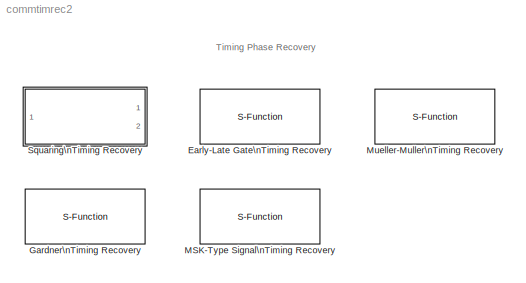
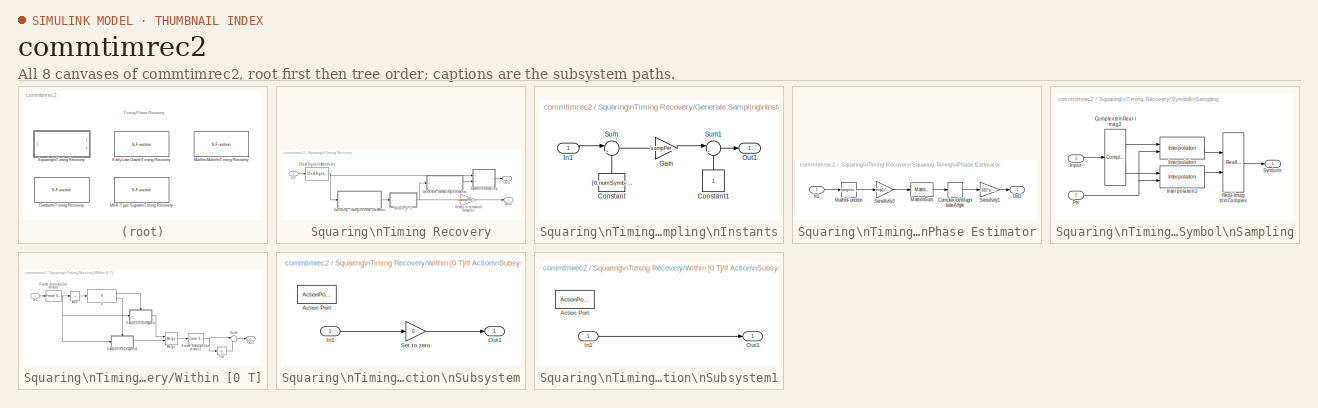
[diagram: thumbnail index - all 8 canvases of the model, root first then tree order]
MODEL commtimrec2
KIND library
BLOCK [S-Function] Early-Late Gate\nTiming Recovery
  FunctionName = scomtimreclin
  MaskCallbackString = ||
  MaskDescription = Recover the symbol timing phase using the early-late gate method. This non-data-aided feedback method is suitable for linear baseband modulations.\n\nThe method estimates the symbol timing phase offset for each incoming symbol and outputs the signal value corresponding to the estimated symbol sampling instant.\n\nThe second output returns the estimated timing phase offset for each symbol, which is...<+185ch>
  MaskDisplay = disp('Early-Late Gate\\nTiming Recovery');\nport_label('input', s.i1, s.i1s);\nport_label('input', s.i2, s.i2s);\nport_label('output', s.o1, s.o1s);\nport_label('output', s.o2, s.o2s);\n
  MaskEnableString = on,on,on
  MaskHelp = helpview(commbhelp);
  MaskIconFrame = on
  MaskIconOpaque = on
  MaskIconRotate = none
  MaskIconUnits = autoscale
  MaskInitialization = s = commblktimrec(resetMode);
  MaskPromptString = Samples per symbol:|Error update gain:|Reset:
  MaskSelfModifiable = on
  MaskStyleString = edit,edit,popup(None|Every frame|On nonzero input via port)
  MaskTabNameString = ,,
  MaskToolTipString = on,on,on
  MaskTunableValueString = on,on,on
  MaskType = Early-Late Gate Timing Recovery
  MaskValueString = 4|0.05|None
  MaskVarAliasString = ,,
  MaskVariables = sampPerSymbol=@1;propGain=@2;resetMode=@3;
  MaskVisibilityString = on,on,on
  Parameters = sampPerSymbol, propGain, resetMode, 2
  Ports = [1, 2]
BLOCK [S-Function] Gardner\nTiming Recovery
  FunctionName = scomtimreclin
  MaskCallbackString = ||
  MaskDescription = Recover the symbol timing phase using Gardner's method. This non-data-aided feedback method is suitable for linear baseband modulations.\n\nThe method estimates the symbol timing phase offset for each incoming symbol and outputs the signal value corresponding to the estimated symbol sampling instant.\n\nThe second output returns the estimated timing phase offset for each symbol, which is a nonnega...<+175ch>
  MaskDisplay = disp('Gardner\\nTiming Recovery');\nport_label('input', s.i1, s.i1s);\nport_label('input', s.i2, s.i2s);\nport_label('output', s.o1, s.o1s);\nport_label('output', s.o2, s.o2s);\n
  MaskEnableString = on,on,on
  MaskHelp = helpview(commbhelp);
  MaskIconFrame = on
  MaskIconOpaque = on
  MaskIconRotate = none
  MaskIconUnits = autoscale
  MaskInitialization = s = commblktimrec(resetMode);
  MaskPromptString = Samples per symbol:|Error update gain:|Reset:
  MaskSelfModifiable = on
  MaskStyleString = edit,edit,popup(None|Every frame|On nonzero input via port)
  MaskTabNameString = ,,
  MaskToolTipString = on,on,on
  MaskTunableValueString = on,on,on
  MaskType = Gardner Timing Recovery
  MaskValueString = 4|0.05|None
  MaskVarAliasString = ,,
  MaskVariables = sampPerSymbol=@1;propGain=@2;resetMode=@3;
  MaskVisibilityString = on,on,on
  Parameters = sampPerSymbol, propGain, resetMode, 1
  Ports = [1, 2]
BLOCK [S-Function] MSK-Type Signal\nTiming Recovery
  FunctionName = scomtimrecmsk
  MaskCallbackString = |||
  MaskDescription = Recover the symbol timing phase using a fourth-order non-linearity method. This non-data-aided feedback method is suitable for MSK-type baseband modulations.\n\nThe method estimates the symbol timing phase offset for each incoming symbol and outputs the signal value corresponding to the estimated symbol sampling instant.\n\nThe second output returns the estimated timing phase offset for each symbo...<+196ch>
  MaskDisplay = disp([s.type ' Signal\\nTiming Recovery']);\nport_label('input', s.i1, s.i1s);\nport_label('input', s.i2, s.i2s);\nport_label('output', s.o1, s.o1s);\nport_label('output', s.o2, s.o2s);\n
  MaskEnableString = on,on,on,on
  MaskHelp = helpview(commbhelp);
  MaskIconFrame = on
  MaskIconOpaque = on
  MaskIconRotate = none
  MaskIconUnits = autoscale
  MaskInitialization = s = commblktimrec(resetMode, modType);
  MaskPromptString = Modulation type:|Samples per symbol:|Error update gain:|Reset:
  MaskSelfModifiable = on
  MaskStyleString = popup(MSK|GMSK),edit,edit,popup(None|Every frame|On nonzero input via port)
  MaskTabNameString = ,,,
  MaskToolTipString = on,on,on,on
  MaskTunableValueString = on,on,on,on
  MaskType = MSK-Type Signal Timing Recovery
  MaskValueString = MSK|4|0.05|None
  MaskVarAliasString = ,,,
  MaskVariables = modType=@1;sampPerSymbol=@2;propGain=@3;resetMode=@4;
  MaskVisibilityString = on,on,on,on
  Parameters = sampPerSymbol, propGain, resetMode, modType
  Ports = [1, 2]
BLOCK [S-Function] Mueller-Muller\nTiming Recovery
  FunctionName = scomtimreclin
  MaskCallbackString = ||
  MaskDescription = Recover the symbol timing phase using the Mueller-Muller method. This decision-directed data-aided feedback method is suitable for linear binary baseband modulations.\n\nThe method estimates the symbol timing phase offset for each incoming symbol and outputs the signal value corresponding to the estimated symbol sampling instant.\n\nThe second output returns the estimated timing phase offset for e...<+205ch>
  MaskDisplay = disp('Mueller-Muller\\nTiming Recovery');\nport_label('input', s.i1, s.i1s);\nport_label('input', s.i2, s.i2s);\nport_label('output', s.o1, s.o1s);\nport_label('output', s.o2, s.o2s);\n
  MaskEnableString = on,on,on
  MaskHelp = helpview(commbhelp);
  MaskIconFrame = on
  MaskIconOpaque = on
  MaskIconRotate = none
  MaskIconUnits = autoscale
  MaskInitialization = s = commblktimrec(resetMode);
  MaskPromptString = Samples per symbol:|Error update gain:|Reset:
  MaskSelfModifiable = on
  MaskStyleString = edit,edit,popup(None|Every frame|On nonzero input via port)
  MaskTabNameString = ,,
  MaskToolTipString = on,on,on
  MaskTunableValueString = on,on,on
  MaskType = Mueller-Muller Timing Recovery
  MaskValueString = 4|0.05|None
  MaskVarAliasString = ,,
  MaskVariables = sampPerSymbol=@1;propGain=@2;resetMode=@3;
  MaskVisibilityString = on,on,on
  Parameters = sampPerSymbol, propGain, resetMode, 3
  Ports = [1, 2]
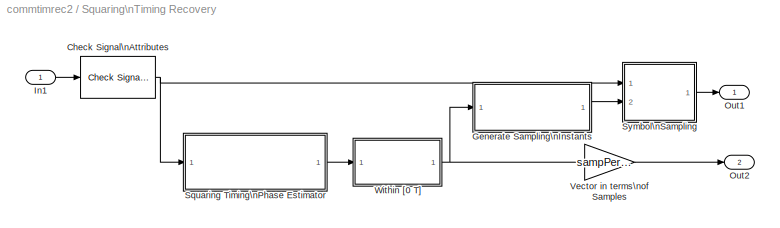
BLOCK [SubSystem] Squaring\nTiming Recovery
  ErrorFcn = commblktimrecechk
  MaskCallbackString = |
  MaskDescription = Recover the symbol timing phase using a Squaring method. This frame-based feed-forward method is suitable for linear baseband modulations.\n\nThe method estimates the symbol timing phase offset for a sequence of symbols and outputs the symbol spaced signal values by applying the estimate uniformly over the sequence of data.\n\nThe symbol timing phase offset is assumed to remain constant for an obs...<+242ch>
  MaskDisplay = disp('Squaring\\nTiming Recovery');\nport_label('output',1,'Sym');\nport_label('output',2,'Ph');\n
  MaskEnableString = on,on
  MaskHelp = helpview(commbhelp);
  MaskIconFrame = on
  MaskIconOpaque = on
  MaskIconRotate = none
  MaskIconUnits = autoscale
  MaskInitialization = commblksqtimrec2(numSymb, sampPerSymb);
  MaskPromptString = Symbols per frame:|Samples per symbol:
  MaskSelfModifiable = on
  MaskStyleString = edit,edit
  MaskTabNameString = ,
  MaskToolTipString = on,on
  MaskTunableValueString = on,on
  MaskType = Squaring Timing Recovery
  MaskValueString = 100|4
  MaskVarAliasString = ,
  MaskVariables = numSymb=@1;sampPerSymb=@2;
  MaskVisibilityString = on,on
  Ports = [1, 2]
  TreatAsAtomicUnit = off
BLOCK [Reference] Squaring\nTiming Recovery/Check Signal\nAttributes  REF=dspsigattribs/Check Signal\nAttributes
  Complexity = Complex
  DatatypeCheckMethod = Ignore
  DatatypeGeneral = Boolean
  Dimensions = 1-D
  DimsCheckMethod = Ignore
  DtypeFixedSpecific = Any fixed-point
  DtypeFloatSpecific = Any floating-point
  DtypeIntSpecific = Any integer
  Frame = Frame-based
  Ports = [1, 1]
  SampleMode = Ignore
  SigAttribCheckMethod = Does not match attributes exactly
  SourceBlock = dspsigattribs/Check Signal\nAttributes
  SourceType = Check Signal Attributes
BLOCK [SubSystem] Squaring\nTiming Recovery/Generate Sampling\nInstants
  MaskCallbackString = |
  MaskDescription = Map the delay estimate to the symbol sampling instants for the number of symbols in the observation interval.
  MaskDisplay = disp('Generate\\nInstants');\nport_label('input',1,'Phase');\nport_label('output',1,'Pts');
  MaskEnableString = on,on
  MaskIconFrame = on
  MaskIconOpaque = on
  MaskIconRotate = none
  MaskIconUnits = autoscale
  MaskPromptString = Number of symbols:|Samples per symbol:
  MaskSelfModifiable = on
  MaskStyleString = edit,edit
  MaskTabNameString = ,
  MaskToolTipString = on,on
  MaskTunableValueString = on,on
  MaskType = Generate points
  MaskValueString = numSymb|sampPerSymb
  MaskVarAliasString = ,
  MaskVariables = numSymb=@1;sampPerSymb=@2;
  MaskVisibilityString = on,on
  Ports = [1, 1]
  TreatAsAtomicUnit = off
BLOCK [Constant] Squaring\nTiming Recovery/Generate Sampling\nInstants/Constant
  Value = [0:numSymb-1]'
BLOCK [Constant] Squaring\nTiming Recovery/Generate Sampling\nInstants/Constant1
BLOCK [Gain] Squaring\nTiming Recovery/Generate Sampling\nInstants/Gain
  Gain = sampPerSymb
BLOCK [Inport] Squaring\nTiming Recovery/Generate Sampling\nInstants/In1
  IconDisplay = Port number
BLOCK [Outport] Squaring\nTiming Recovery/Generate Sampling\nInstants/Out1
  IconDisplay = Port number
BLOCK [Sum] Squaring\nTiming Recovery/Generate Sampling\nInstants/Sum
  IconShape = round
  InputSameDT = off
  Inputs = |++
  OutDataTypeMode = Inherit via internal rule
  Ports = [2, 1]
BLOCK [Sum] Squaring\nTiming Recovery/Generate Sampling\nInstants/Sum1
  IconShape = round
  InputSameDT = off
  Inputs = |++
  OutDataTypeMode = Inherit via internal rule
  Ports = [2, 1]
BLOCK [Inport] Squaring\nTiming Recovery/In1
  IconDisplay = Port number
BLOCK [Outport] Squaring\nTiming Recovery/Out1
  IconDisplay = Port number
BLOCK [Outport] Squaring\nTiming Recovery/Out2
  IconDisplay = Port number
  Port = 2
BLOCK [SubSystem] Squaring\nTiming Recovery/Squaring Timing\nPhase Estimator
  MaskCallbackString = |
  MaskDescription = A digital squaring timing phase estimator as proposed by Oerder and Meyr, this is a feed-forward method which uses the number of symbols as its observation interval to provide an estimate of the timing phase. \n\nThe output timing phase estimate is in the interval [-T/2 T/2] where T is the normalized symbol period.\n\nThe input frame length must be equal to the product of the observation interval ...<+44ch>
  MaskDisplay = disp('Squaring Timing\\n Phase Estimator');\nport_label('output',1,'Ph');\n
  MaskEnableString = on,on
  MaskIconFrame = on
  MaskIconOpaque = on
  MaskIconRotate = none
  MaskIconUnits = autoscale
  MaskPromptString = Observation interval (in symbols):|Samples per symbol:
  MaskSelfModifiable = on
  MaskStyleString = edit,edit
  MaskTabNameString = ,
  MaskToolTipString = on,on
  MaskTunableValueString = on,on
  MaskType = Squaring Timing Phase Estimator
  MaskValueString = numSymb|sampPerSymb
  MaskVarAliasString = ,
  MaskVariables = obsInt=@1;L=@2;
  MaskVisibilityString = on,on
  Ports = [1, 1]
  TreatAsAtomicUnit = off
BLOCK [ComplexToMagnitudeAngle] Squaring\nTiming Recovery/Squaring Timing\nPhase Estimator/Complex to\nMagnitude-Angle
  Output = Angle
  Ports = [1, 1]
BLOCK [Inport] Squaring\nTiming Recovery/Squaring Timing\nPhase Estimator/In1
  IconDisplay = Port number
BLOCK [Math] Squaring\nTiming Recovery/Squaring Timing\nPhase Estimator/Math\nFunction
  Operator = magnitude^2
  Ports = [1, 1]
BLOCK [Reference] Squaring\nTiming Recovery/Squaring Timing\nPhase Estimator/Matrix\nSum  REF=dspmtrx3/Matrix\nSum
  Dim = Columns
  Ports = [1, 1]
  SourceBlock = dspmtrx3/Matrix\nSum
  SourceType = Matrix Sum
  accumFracLength = 30
  accumMode = Inherit via internal rule
  accumWordLength = 40
  additionalParams = off
  allowOverrides = on
  outputFracLength = 30
  outputMode = Same as input
  outputWordLength = 32
  overflowMode = off
  roundingMode = Floor
BLOCK [Outport] Squaring\nTiming Recovery/Squaring Timing\nPhase Estimator/Out1
  IconDisplay = Port number
BLOCK [Gain] Squaring\nTiming Recovery/Squaring Timing\nPhase Estimator/Sensitivity1
  Gain = -1/(2*pi)
BLOCK [Gain] Squaring\nTiming Recovery/Squaring Timing\nPhase Estimator/Sensitivity3
  Gain = exp(-i*2*pi*(0:L*obsInt-1)'/L)
BLOCK [SubSystem] Squaring\nTiming Recovery/Symbol\nSampling
  Ports = [2, 1]
  TreatAsAtomicUnit = off
BLOCK [ComplexToRealImag] Squaring\nTiming Recovery/Symbol\nSampling/Complex to\nReal-Imag2
  Output = Real and imag
  Ports = [1, 2]
BLOCK [Inport] Squaring\nTiming Recovery/Symbol\nSampling/Input
  IconDisplay = Port number
BLOCK [Reference] Squaring\nTiming Recovery/Symbol\nSampling/Interpolation  REF=dspsigops/Interpolation
  InterpAlpha = 0.5
  InterpL = 3
  InterpMode = Linear
  InterpPoints = [1.1 4.8 2.67 1.6 3.2]'
  InterpR = 3
  InterpSource = Input port
  InvalidMode = Clip
  Ports = [2, 1]
  SourceBlock = dspsigops/Interpolation
  SourceType = Interpolation
BLOCK [Reference] Squaring\nTiming Recovery/Symbol\nSampling/Interpolation1  REF=dspsigops/Interpolation
  InterpAlpha = 0.5
  InterpL = 3
  InterpMode = Linear
  InterpPoints = [1.1 4.8 2.67 1.6 3.2]'
  InterpR = 3
  InterpSource = Input port
  InvalidMode = Clip
  Ports = [2, 1]
  SourceBlock = dspsigops/Interpolation
  SourceType = Interpolation
BLOCK [Inport] Squaring\nTiming Recovery/Symbol\nSampling/Pts
  IconDisplay = Port number
  Port = 2
BLOCK [RealImagToComplex] Squaring\nTiming Recovery/Symbol\nSampling/Real-Imag to\nComplex
  Input = Real and imag
  Ports = [2, 1]
BLOCK [Outport] Squaring\nTiming Recovery/Symbol\nSampling/Symbols
  IconDisplay = Port number
BLOCK [Gain] Squaring\nTiming Recovery/Vector in terms\nof Samples
  Gain = sampPerSymb.*ones(numSymb,1)
  Multiplication = Matrix(K*u)
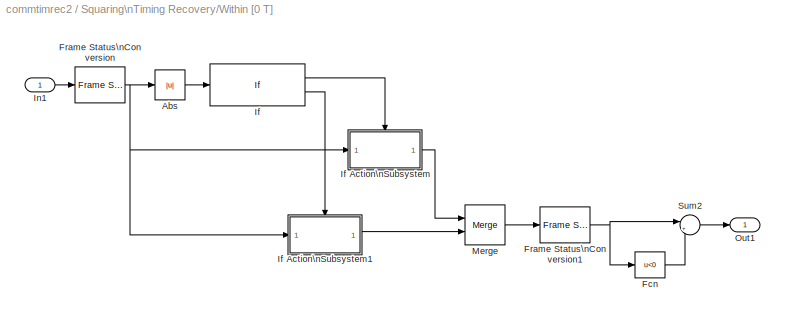
BLOCK [SubSystem] Squaring\nTiming Recovery/Within [0 T]
  MaskDescription = The block applies a threshold to the estimate input value and then converts the values [-T/2 T/2] to lie in the [0 T] range.\n\nIf the absolute estimate is less than the threshold, it is set to 0. The threshold should be chosen less than 1/L where L is the number of samples per symbol.
  MaskDisplay = disp('Correct\\nInterval');\n
  MaskEnableString = on
  MaskIconFrame = on
  MaskIconOpaque = on
  MaskIconRotate = none
  MaskIconUnits = autoscale
  MaskPromptString = Threshold:
  MaskSelfModifiable = on
  MaskStyleString = edit
  MaskToolTipString = on
  MaskTunableValueString = on
  MaskType = Correct Interval
  MaskValueString = (1/sampPerSymb)/2
  MaskVariables = threshold=@1;
  MaskVisibilityString = on
  Ports = [1, 1]
  TreatAsAtomicUnit = off
BLOCK [Abs] Squaring\nTiming Recovery/Within [0 T]/Abs
BLOCK [Fcn] Squaring\nTiming Recovery/Within [0 T]/Fcn
  Expr = u<0
BLOCK [Reference] Squaring\nTiming Recovery/Within [0 T]/Frame Status\nConversion  REF=dspsigattribs/Frame Status\nConversion
  Ports = [1, 1]
  SourceBlock = dspsigattribs/Frame Status\nConversion
  SourceType = Frame Status Conversion
  growRefPort = off
  outframe = Sample-based
BLOCK [Reference] Squaring\nTiming Recovery/Within [0 T]/Frame Status\nConversion1  REF=dspsigattribs/Frame Status\nConversion
  Ports = [1, 1]
  SourceBlock = dspsigattribs/Frame Status\nConversion
  SourceType = Frame Status Conversion
  growRefPort = off
  outframe = Frame-based
BLOCK [If] Squaring\nTiming Recovery/Within [0 T]/If
  IfExpression = u1 < threshold
  Ports = [1, 2]
BLOCK [SubSystem] Squaring\nTiming Recovery/Within [0 T]/If Action\nSubsystem
  Ports = [1, 1, 0, 0, 0, 0, 0, 1]
  TreatAsAtomicUnit = on
BLOCK [ActionPort] Squaring\nTiming Recovery/Within [0 T]/If Action\nSubsystem/Action Port
BLOCK [Inport] Squaring\nTiming Recovery/Within [0 T]/If Action\nSubsystem/In1
  IconDisplay = Port number
BLOCK [Outport] Squaring\nTiming Recovery/Within [0 T]/If Action\nSubsystem/Out1
  IconDisplay = Port number
BLOCK [Gain] Squaring\nTiming Recovery/Within [0 T]/If Action\nSubsystem/Set to zero
  Gain = 0
BLOCK [SubSystem] Squaring\nTiming Recovery/Within [0 T]/If Action\nSubsystem1
  AncestorBlock = commsyncprivate/Subsystem/If Action\nSubsystem
  Ports = [1, 1, 0, 0, 0, 0, 0, 1]
  TreatAsAtomicUnit = on
BLOCK [ActionPort] Squaring\nTiming Recovery/Within [0 T]/If Action\nSubsystem1/Action Port
BLOCK [Inport] Squaring\nTiming Recovery/Within [0 T]/If Action\nSubsystem1/In1
  IconDisplay = Port number
BLOCK [Outport] Squaring\nTiming Recovery/Within [0 T]/If Action\nSubsystem1/Out1
  IconDisplay = Port number
BLOCK [Inport] Squaring\nTiming Recovery/Within [0 T]/In1
  IconDisplay = Port number
BLOCK [Merge] Squaring\nTiming Recovery/Within [0 T]/Merge
  Ports = [2, 1]
BLOCK [Outport] Squaring\nTiming Recovery/Within [0 T]/Out1
  IconDisplay = Port number
BLOCK [Sum] Squaring\nTiming Recovery/Within [0 T]/Sum2
  IconShape = round
  InputSameDT = off
  Inputs = |++
  OutDataTypeMode = Inherit via internal rule
  Ports = [2, 1]
ANNOTATION (root): Timing Phase Recovery
NET Squaring\nTiming Recovery/Check Signal\nAttributes:1 -> Squaring\nTiming Recovery/Squaring Timing\nPhase Estimator:1, Squaring\nTiming Recovery/Symbol\nSampling:1
LINE Squaring\nTiming Recovery/Generate Sampling\nInstants/Constant1:1 -> Squaring\nTiming Recovery/Generate Sampling\nInstants/Sum1:2
LINE Squaring\nTiming Recovery/Generate Sampling\nInstants/Constant:1 -> Squaring\nTiming Recovery/Generate Sampling\nInstants/Sum:2
LINE Squaring\nTiming Recovery/Generate Sampling\nInstants/Gain:1 -> Squaring\nTiming Recovery/Generate Sampling\nInstants/Sum1:1
LINE Squaring\nTiming Recovery/Generate Sampling\nInstants/In1:1 -> Squaring\nTiming Recovery/Generate Sampling\nInstants/Sum:1
LINE Squaring\nTiming Recovery/Generate Sampling\nInstants/Sum1:1 -> Squaring\nTiming Recovery/Generate Sampling\nInstants/Out1:1
LINE Squaring\nTiming Recovery/Generate Sampling\nInstants/Sum:1 -> Squaring\nTiming Recovery/Generate Sampling\nInstants/Gain:1
LINE Squaring\nTiming Recovery/Generate Sampling\nInstants:1 -> Squaring\nTiming Recovery/Symbol\nSampling:2
LINE Squaring\nTiming Recovery/In1:1 -> Squaring\nTiming Recovery/Check Signal\nAttributes:1
LINE Squaring\nTiming Recovery/Squaring Timing\nPhase Estimator/Complex to\nMagnitude-Angle:1 -> Squaring\nTiming Recovery/Squaring Timing\nPhase Estimator/Sensitivity1:1
LINE Squaring\nTiming Recovery/Squaring Timing\nPhase Estimator/In1:1 -> Squaring\nTiming Recovery/Squaring Timing\nPhase Estimator/Math\nFunction:1
LINE Squaring\nTiming Recovery/Squaring Timing\nPhase Estimator/Math\nFunction:1 -> Squaring\nTiming Recovery/Squaring Timing\nPhase Estimator/Sensitivity3:1
LINE Squaring\nTiming Recovery/Squaring Timing\nPhase Estimator/Matrix\nSum:1 -> Squaring\nTiming Recovery/Squaring Timing\nPhase Estimator/Complex to\nMagnitude-Angle:1
LINE Squaring\nTiming Recovery/Squaring Timing\nPhase Estimator/Sensitivity1:1 -> Squaring\nTiming Recovery/Squaring Timing\nPhase Estimator/Out1:1
LINE Squaring\nTiming Recovery/Squaring Timing\nPhase Estimator/Sensitivity3:1 -> Squaring\nTiming Recovery/Squaring Timing\nPhase Estimator/Matrix\nSum:1
LINE Squaring\nTiming Recovery/Squaring Timing\nPhase Estimator:1 -> Squaring\nTiming Recovery/Within [0 T]:1
LINE Squaring\nTiming Recovery/Symbol\nSampling/Complex to\nReal-Imag2:1 -> Squaring\nTiming Recovery/Symbol\nSampling/Interpolation:1
LINE Squaring\nTiming Recovery/Symbol\nSampling/Complex to\nReal-Imag2:2 -> Squaring\nTiming Recovery/Symbol\nSampling/Interpolation1:1
LINE Squaring\nTiming Recovery/Symbol\nSampling/Input:1 -> Squaring\nTiming Recovery/Symbol\nSampling/Complex to\nReal-Imag2:1
LINE Squaring\nTiming Recovery/Symbol\nSampling/Interpolation1:1 -> Squaring\nTiming Recovery/Symbol\nSampling/Real-Imag to\nComplex:2
LINE Squaring\nTiming Recovery/Symbol\nSampling/Interpolation:1 -> Squaring\nTiming Recovery/Symbol\nSampling/Real-Imag to\nComplex:1
NET Squaring\nTiming Recovery/Symbol\nSampling/Pts:1 -> Squaring\nTiming Recovery/Symbol\nSampling/Interpolation1:2, Squaring\nTiming Recovery/Symbol\nSampling/Interpolation:2
LINE Squaring\nTiming Recovery/Symbol\nSampling/Real-Imag to\nComplex:1 -> Squaring\nTiming Recovery/Symbol\nSampling/Symbols:1
LINE Squaring\nTiming Recovery/Symbol\nSampling:1 -> Squaring\nTiming Recovery/Out1:1
LINE Squaring\nTiming Recovery/Vector in terms\nof Samples:1 -> Squaring\nTiming Recovery/Out2:1
LINE Squaring\nTiming Recovery/Within [0 T]/Abs:1 -> Squaring\nTiming Recovery/Within [0 T]/If:1
LINE Squaring\nTiming Recovery/Within [0 T]/Fcn:1 -> Squaring\nTiming Recovery/Within [0 T]/Sum2:2
NET Squaring\nTiming Recovery/Within [0 T]/Frame Status\nConversion1:1 -> Squaring\nTiming Recovery/Within [0 T]/Fcn:1, Squaring\nTiming Recovery/Within [0 T]/Sum2:1
NET Squaring\nTiming Recovery/Within [0 T]/Frame Status\nConversion:1 -> Squaring\nTiming Recovery/Within [0 T]/Abs:1, Squaring\nTiming Recovery/Within [0 T]/If Action\nSubsystem1:1, Squaring\nTiming Recovery/Within [0 T]/If Action\nSubsystem:1
LINE Squaring\nTiming Recovery/Within [0 T]/If Action\nSubsystem/In1:1 -> Squaring\nTiming Recovery/Within [0 T]/If Action\nSubsystem/Set to zero:1
LINE Squaring\nTiming Recovery/Within [0 T]/If Action\nSubsystem/Set to zero:1 -> Squaring\nTiming Recovery/Within [0 T]/If Action\nSubsystem/Out1:1
LINE Squaring\nTiming Recovery/Within [0 T]/If Action\nSubsystem1/In1:1 -> Squaring\nTiming Recovery/Within [0 T]/If Action\nSubsystem1/Out1:1
LINE Squaring\nTiming Recovery/Within [0 T]/If Action\nSubsystem1:1 -> Squaring\nTiming Recovery/Within [0 T]/Merge:2
LINE Squaring\nTiming Recovery/Within [0 T]/If Action\nSubsystem:1 -> Squaring\nTiming Recovery/Within [0 T]/Merge:1
LINE Squaring\nTiming Recovery/Within [0 T]/If:1 -> Squaring\nTiming Recovery/Within [0 T]/If Action\nSubsystem:ifaction
LINE Squaring\nTiming Recovery/Within [0 T]/If:2 -> Squaring\nTiming Recovery/Within [0 T]/If Action\nSubsystem1:ifaction
LINE Squaring\nTiming Recovery/Within [0 T]/In1:1 -> Squaring\nTiming Recovery/Within [0 T]/Frame Status\nConversion:1
LINE Squaring\nTiming Recovery/Within [0 T]/Merge:1 -> Squaring\nTiming Recovery/Within [0 T]/Frame Status\nConversion1:1
LINE Squaring\nTiming Recovery/Within [0 T]/Sum2:1 -> Squaring\nTiming Recovery/Within [0 T]/Out1:1
NET Squaring\nTiming Recovery/Within [0 T]:1 -> Squaring\nTiming Recovery/Generate Sampling\nInstants:1, Squaring\nTiming Recovery/Vector in terms\nof Samples:1
note: NET lines group one-source signal fan-out (src -> all destinations, sorted); 1:1 wires keep LINE
